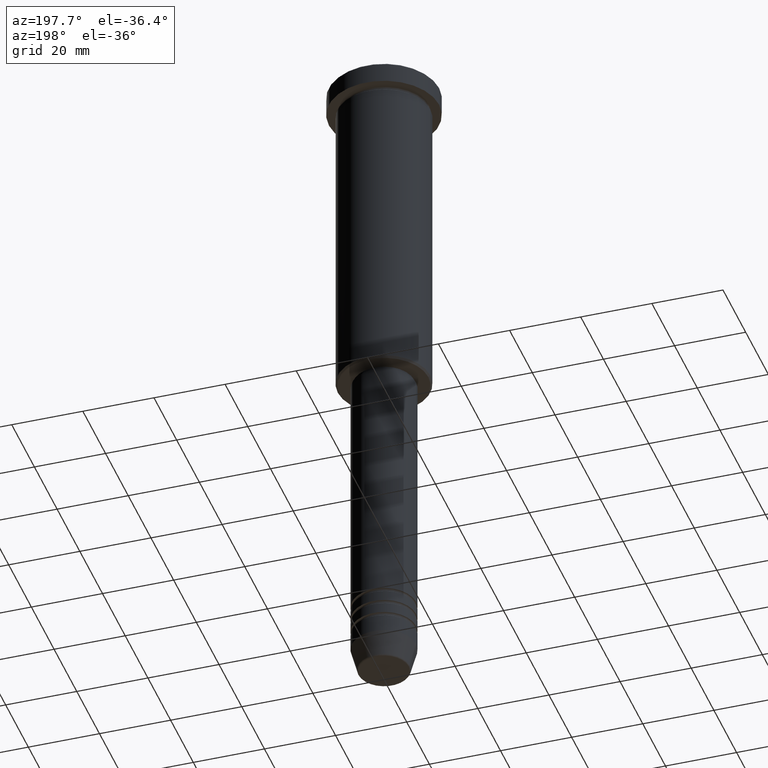
[diagram: clean part render]
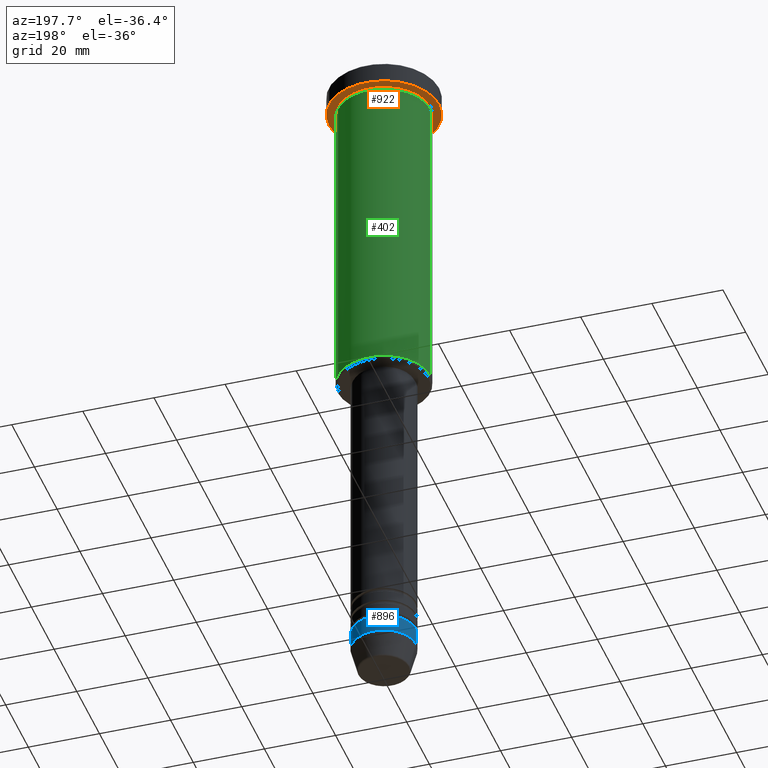
[diagram: same view with three faces highlighted in distinct colors, each labeled with its STEP entity id]
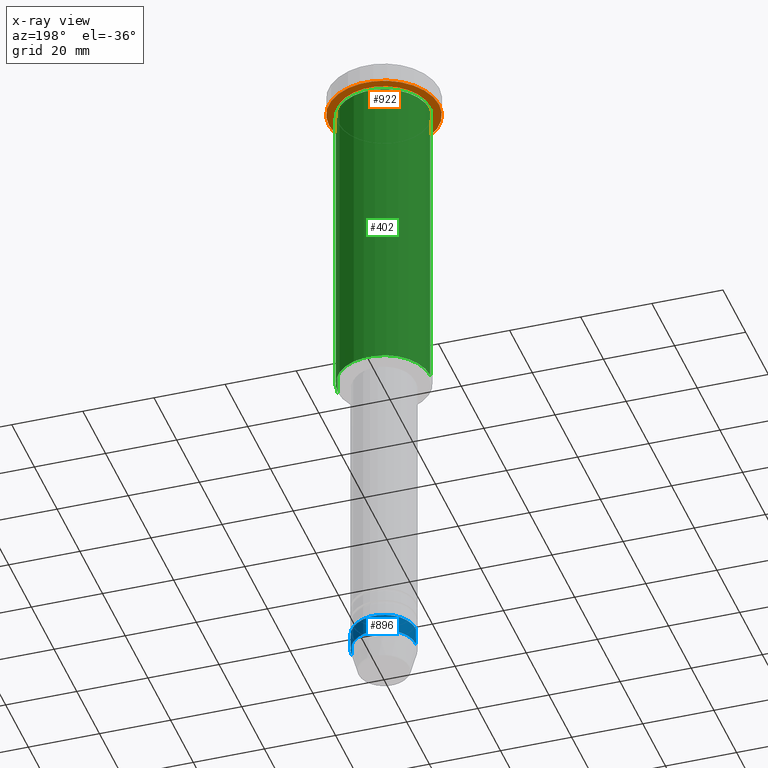
[diagram: x-ray of the same camera — body ghosted, the three highlighted faces saturated]
A machine part, auxiliary view with three faces highlighted in distinct colors.
The next image is the same camera in x-ray (body ghosted, the three faces saturated) — at least one of them is partly hidden behind the body in this view.
Their STEP definitions:

[orange] entity #922 — the highlighted planar face has unit normal (0, 0, -1).
#31 = ORIENTED_EDGE ( 'NONE', *, *, #333, .F. ) ;
#34 = EDGE_CURVE ( 'NONE', #840, #297, #467, .T. ) ;
#35 = DIRECTION ( 'NONE',  ( 1.000000000000000000, 0.000000000000000000, 0.000000000000000000 ) ) ;
#113 = DIRECTION ( 'NONE',  ( -0.000000000000000000, -0.000000000000000000, 1.000000000000000000 ) ) ;
#120 = EDGE_CURVE ( 'NONE', #297, #840, #369, .T. ) ;
#181 = CARTESIAN_POINT ( 'NONE',  ( -13.00000000000000000, 0.000000000000000000, -5.999999999999994671 ) ) ;
#187 = ORIENTED_EDGE ( 'NONE', *, *, #34, .T. ) ;
#246 = DIRECTION ( 'NONE',  ( 1.000000000000000000, 0.000000000000000000, 0.000000000000000000 ) ) ;
#297 = VERTEX_POINT ( 'NONE', #631 ) ;
#298 = CARTESIAN_POINT ( 'NONE',  ( 0.000000000000000000, 0.000000000000000000, -5.999999999999995559 ) ) ;
#333 = EDGE_CURVE ( 'NONE', #547, #937, #795, .T. ) ;
#339 = CARTESIAN_POINT ( 'NONE',  ( 15.50000000000000000, 0.000000000000000000, -5.999999999999995559 ) ) ;
#369 = CIRCLE ( 'NONE', #623, 13.00000000000000000 ) ;
#383 = PLANE ( 'NONE',  #1100 ) ;
#433 = DIRECTION ( 'NONE',  ( 0.000000000000000000, 0.000000000000000000, -1.000000000000000000 ) ) ;
#435 = CARTESIAN_POINT ( 'NONE',  ( 0.000000000000000000, 0.000000000000000000, -5.999999999999995559 ) ) ;
#467 = CIRCLE ( 'NONE', #483, 13.00000000000000000 ) ;
#475 = DIRECTION ( 'NONE',  ( -1.000000000000000000, 0.000000000000000000, -0.000000000000000000 ) ) ;
#483 = AXIS2_PLACEMENT_3D ( 'NONE', #543, #528, #915 ) ;
#484 = AXIS2_PLACEMENT_3D ( 'NONE', #298, #859, #35 ) ;
#528 = DIRECTION ( 'NONE',  ( -0.000000000000000000, -0.000000000000000000, 1.000000000000000000 ) ) ;
#543 = CARTESIAN_POINT ( 'NONE',  ( 0.000000000000000000, 0.000000000000000000, -5.999999999999995559 ) ) ;
#547 = VERTEX_POINT ( 'NONE', #977 ) ;
#563 = CARTESIAN_POINT ( 'NONE',  ( 0.000000000000000000, 15.50000000000000000, -5.999999999999995559 ) ) ;
#623 = AXIS2_PLACEMENT_3D ( 'NONE', #1121, #113, #846 ) ;
#631 = CARTESIAN_POINT ( 'NONE',  ( 13.00000000000000000, 1.592040838891559095E-15, -5.999999999999994671 ) ) ;
#665 = CIRCLE ( 'NONE', #484, 15.50000000000000000 ) ;
#795 = CIRCLE ( 'NONE', #1144, 15.50000000000000000 ) ;
#840 = VERTEX_POINT ( 'NONE', #181 ) ;
#846 = DIRECTION ( 'NONE',  ( -1.000000000000000000, 0.000000000000000000, 0.000000000000000000 ) ) ;
#848 = ORIENTED_EDGE ( 'NONE', *, *, #1080, .F. ) ;
#859 = DIRECTION ( 'NONE',  ( -0.000000000000000000, -0.000000000000000000, 1.000000000000000000 ) ) ;
#901 = DIRECTION ( 'NONE',  ( -0.000000000000000000, -0.000000000000000000, 1.000000000000000000 ) ) ;
#913 = EDGE_LOOP ( 'NONE', ( #187, #1086 ) ) ;
#915 = DIRECTION ( 'NONE',  ( -1.000000000000000000, 0.000000000000000000, 0.000000000000000000 ) ) ;
#922 = ADVANCED_FACE ( 'NONE', ( #1170, #1023 ), #383, .T. ) ;
#937 = VERTEX_POINT ( 'NONE', #339 ) ;
#956 = EDGE_LOOP ( 'NONE', ( #848, #31 ) ) ;
#977 = CARTESIAN_POINT ( 'NONE',  ( -15.50000000000000000, 1.898202538678397557E-15, -5.999999999999995559 ) ) ;
#1023 = FACE_OUTER_BOUND ( 'NONE', #956, .T. ) ;
#1080 = EDGE_CURVE ( 'NONE', #937, #547, #665, .T. ) ;
#1086 = ORIENTED_EDGE ( 'NONE', *, *, #120, .T. ) ;
#1100 = AXIS2_PLACEMENT_3D ( 'NONE', #563, #433, #475 ) ;
#1121 = CARTESIAN_POINT ( 'NONE',  ( 0.000000000000000000, 0.000000000000000000, -5.999999999999995559 ) ) ;
#1144 = AXIS2_PLACEMENT_3D ( 'NONE', #435, #901, #246 ) ;
#1170 = FACE_BOUND ( 'NONE', #913, .T. ) ;

[blue] entity #896 — the highlighted cylindrical surface (edge-blend (fillet) strip) has radius 9 mm, axis along (-0, -0, 1).
#14 = LINE ( 'NONE', #478, #1001 ) ;
#17 = EDGE_CURVE ( 'NONE', #185, #1118, #470, .T. ) ;
#26 = AXIS2_PLACEMENT_3D ( 'NONE', #277, #995, #379 ) ;
#28 = DIRECTION ( 'NONE',  ( -0.000000000000000000, -0.000000000000000000, 1.000000000000000000 ) ) ;
#106 = AXIS2_PLACEMENT_3D ( 'NONE', #221, #28, #1131 ) ;
#179 = CARTESIAN_POINT ( 'NONE',  ( -9.000000000000000000, 1.102182119232617714E-15, 0.000000000000000000 ) ) ;
#185 = VERTEX_POINT ( 'NONE', #695 ) ;
#212 = DIRECTION ( 'NONE',  ( -0.000000000000000000, -0.000000000000000000, 1.000000000000000000 ) ) ;
#221 = CARTESIAN_POINT ( 'NONE',  ( 0.000000000000000000, 0.000000000000000000, -184.0000000000000000 ) ) ;
#222 = DIRECTION ( 'NONE',  ( 1.000000000000000000, 0.000000000000000000, 0.000000000000000000 ) ) ;
#224 = VERTEX_POINT ( 'NONE', #1110 ) ;
#277 = CARTESIAN_POINT ( 'NONE',  ( 0.000000000000000000, 0.000000000000000000, 0.000000000000000000 ) ) ;
#319 = VERTEX_POINT ( 'NONE', #530 ) ;
#379 = DIRECTION ( 'NONE',  ( 1.000000000000000000, 0.000000000000000000, 0.000000000000000000 ) ) ;
#454 = ORIENTED_EDGE ( 'NONE', *, *, #592, .F. ) ;
#470 = LINE ( 'NONE', #179, #1025 ) ;
#478 = CARTESIAN_POINT ( 'NONE',  ( 9.000000000000000000, 0.000000000000000000, 0.000000000000000000 ) ) ;
#501 = CARTESIAN_POINT ( 'NONE',  ( -9.000000000000000000, 1.102182119232617714E-15, -179.0000000000000284 ) ) ;
#530 = CARTESIAN_POINT ( 'NONE',  ( 9.000000000000000000, 0.000000000000000000, -179.0000000000000284 ) ) ;
#541 = EDGE_CURVE ( 'NONE', #319, #1118, #1097, .T. ) ;
#557 = AXIS2_PLACEMENT_3D ( 'NONE', #782, #680, #222 ) ;
#568 = ORIENTED_EDGE ( 'NONE', *, *, #17, .T. ) ;
#592 = EDGE_CURVE ( 'NONE', #224, #319, #14, .T. ) ;
#627 = DIRECTION ( 'NONE',  ( -0.000000000000000000, -0.000000000000000000, 1.000000000000000000 ) ) ;
#680 = DIRECTION ( 'NONE',  ( -0.000000000000000000, -0.000000000000000000, 1.000000000000000000 ) ) ;
#694 = ORIENTED_EDGE ( 'NONE', *, *, #541, .F. ) ;
#695 = CARTESIAN_POINT ( 'NONE',  ( -9.000000000000000000, 1.102182119232617714E-15, -184.0000000000000000 ) ) ;
#746 = CYLINDRICAL_SURFACE ( 'NONE', #26, 9.000000000000000000 ) ;
#782 = CARTESIAN_POINT ( 'NONE',  ( 0.000000000000000000, 0.000000000000000000, -179.0000000000000284 ) ) ;
#799 = EDGE_LOOP ( 'NONE', ( #1161, #568, #694, #454 ) ) ;
#896 = ADVANCED_FACE ( 'NONE', ( #1077 ), #746, .T. ) ;
#995 = DIRECTION ( 'NONE',  ( -0.000000000000000000, -0.000000000000000000, 1.000000000000000000 ) ) ;
#1001 = VECTOR ( 'NONE', #212, 1000.000000000000000 ) ;
#1007 = EDGE_CURVE ( 'NONE', #224, #185, #1127, .T. ) ;
#1025 = VECTOR ( 'NONE', #627, 1000.000000000000000 ) ;
#1077 = FACE_OUTER_BOUND ( 'NONE', #799, .T. ) ;
#1097 = CIRCLE ( 'NONE', #557, 9.000000000000000000 ) ;
#1110 = CARTESIAN_POINT ( 'NONE',  ( 9.000000000000000000, 0.000000000000000000, -184.0000000000000000 ) ) ;
#1118 = VERTEX_POINT ( 'NONE', #501 ) ;
#1127 = CIRCLE ( 'NONE', #106, 9.000000000000000000 ) ;
#1131 = DIRECTION ( 'NONE',  ( 1.000000000000000000, 0.000000000000000000, 0.000000000000000000 ) ) ;
#1161 = ORIENTED_EDGE ( 'NONE', *, *, #1007, .T. ) ;

[green] entity #402 — the highlighted cylindrical surface (partial cylindrical patch) has radius 13 mm, axis along (-0, -0, 1).
#15 = CARTESIAN_POINT ( 'NONE',  ( 13.00000000000000178, 0.000000000000000000, 0.000000000000000000 ) ) ;
#71 = FACE_OUTER_BOUND ( 'NONE', #123, .T. ) ;
#119 = CIRCLE ( 'NONE', #514, 13.00000000000000178 ) ;
#123 = EDGE_LOOP ( 'NONE', ( #893, #502, #928, #161 ) ) ;
#161 = ORIENTED_EDGE ( 'NONE', *, *, #880, .F. ) ;
#201 = LINE ( 'NONE', #15, #969 ) ;
#248 = CYLINDRICAL_SURFACE ( 'NONE', #1075, 13.00000000000000178 ) ;
#259 = DIRECTION ( 'NONE',  ( -0.000000000000000000, -0.000000000000000000, 1.000000000000000000 ) ) ;
#260 = EDGE_CURVE ( 'NONE', #567, #756, #119, .T. ) ;
#307 = EDGE_CURVE ( 'NONE', #712, #756, #728, .T. ) ;
#325 = EDGE_CURVE ( 'NONE', #726, #712, #420, .T. ) ;
#402 = ADVANCED_FACE ( 'NONE', ( #71 ), #248, .T. ) ;
#420 = CIRCLE ( 'NONE', #666, 13.00000000000000178 ) ;
#429 = DIRECTION ( 'NONE',  ( -1.000000000000000000, 0.000000000000000000, 0.000000000000000000 ) ) ;
#441 = DIRECTION ( 'NONE',  ( -0.000000000000000000, -0.000000000000000000, 1.000000000000000000 ) ) ;
#480 = VECTOR ( 'NONE', #259, 1000.000000000000000 ) ;
#496 = DIRECTION ( 'NONE',  ( -0.000000000000000000, -0.000000000000000000, 1.000000000000000000 ) ) ;
#502 = ORIENTED_EDGE ( 'NONE', *, *, #307, .T. ) ;
#511 = CARTESIAN_POINT ( 'NONE',  ( 0.000000000000000000, 0.000000000000000000, -95.50000000000000000 ) ) ;
#512 = CARTESIAN_POINT ( 'NONE',  ( 0.000000000000000000, 0.000000000000000000, -6.999999999999995559 ) ) ;
#514 = AXIS2_PLACEMENT_3D ( 'NONE', #512, #496, #691 ) ;
#524 = DIRECTION ( 'NONE',  ( 1.000000000000000000, 0.000000000000000000, 0.000000000000000000 ) ) ;
#556 = DIRECTION ( 'NONE',  ( -0.000000000000000000, -0.000000000000000000, 1.000000000000000000 ) ) ;
#567 = VERTEX_POINT ( 'NONE', #1064 ) ;
#617 = CARTESIAN_POINT ( 'NONE',  ( -13.00000000000000178, 1.592040838891559293E-15, -95.50000000000000000 ) ) ;
#622 = CARTESIAN_POINT ( 'NONE',  ( 0.000000000000000000, 0.000000000000000000, 0.000000000000000000 ) ) ;
#629 = CARTESIAN_POINT ( 'NONE',  ( -13.00000000000000178, 1.592040838891559293E-15, 0.000000000000000000 ) ) ;
#666 = AXIS2_PLACEMENT_3D ( 'NONE', #511, #441, #429 ) ;
#691 = DIRECTION ( 'NONE',  ( 1.000000000000000000, 0.000000000000000000, 0.000000000000000000 ) ) ;
#712 = VERTEX_POINT ( 'NONE', #617 ) ;
#726 = VERTEX_POINT ( 'NONE', #1173 ) ;
#728 = LINE ( 'NONE', #629, #480 ) ;
#756 = VERTEX_POINT ( 'NONE', #1098 ) ;
#880 = EDGE_CURVE ( 'NONE', #726, #567, #201, .T. ) ;
#893 = ORIENTED_EDGE ( 'NONE', *, *, #325, .T. ) ;
#928 = ORIENTED_EDGE ( 'NONE', *, *, #260, .F. ) ;
#969 = VECTOR ( 'NONE', #556, 1000.000000000000000 ) ;
#1064 = CARTESIAN_POINT ( 'NONE',  ( 13.00000000000000178, 0.000000000000000000, -6.999999999999995559 ) ) ;
#1075 = AXIS2_PLACEMENT_3D ( 'NONE', #622, #1165, #524 ) ;
#1098 = CARTESIAN_POINT ( 'NONE',  ( -13.00000000000000178, 1.592040838891559293E-15, -6.999999999999995559 ) ) ;
#1165 = DIRECTION ( 'NONE',  ( -0.000000000000000000, -0.000000000000000000, 1.000000000000000000 ) ) ;
#1173 = CARTESIAN_POINT ( 'NONE',  ( 13.00000000000000178, 0.000000000000000000, -95.50000000000000000 ) ) ;